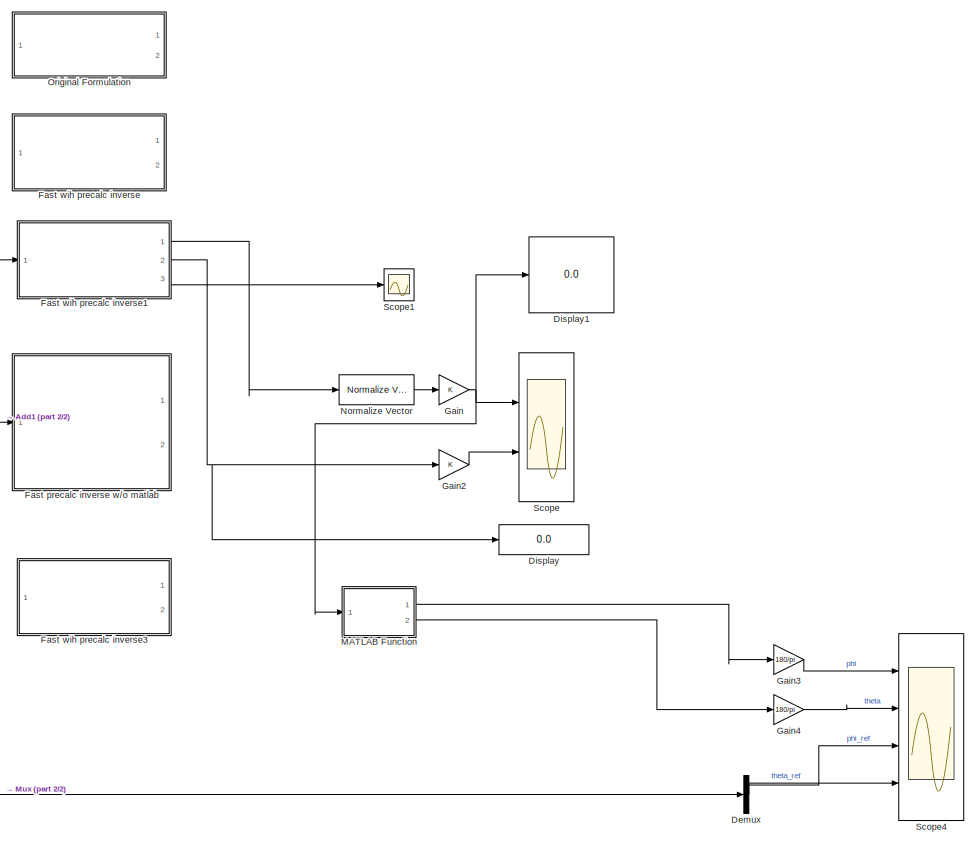
[diagram: root canvas - part 1/2, middle right region]
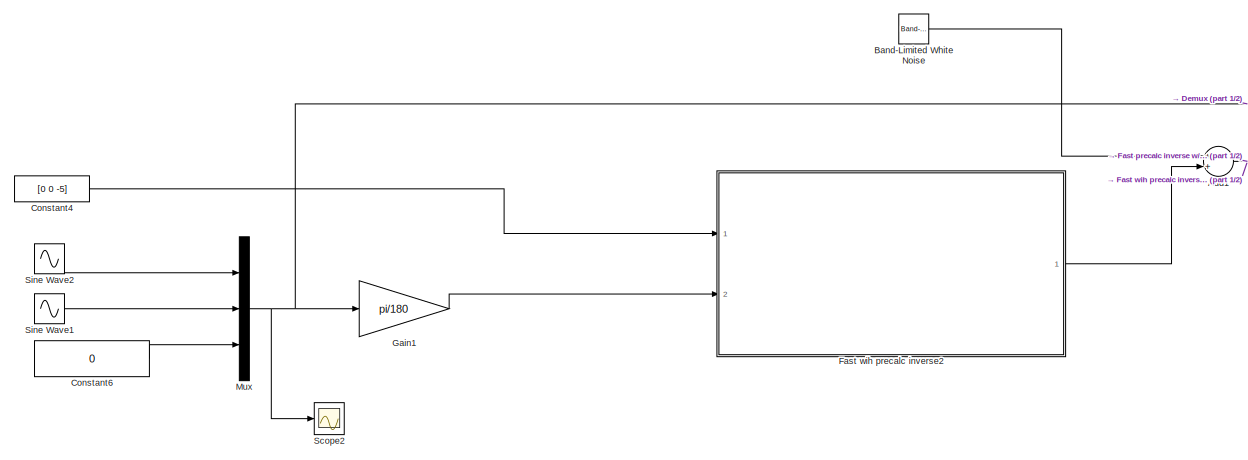
[diagram: root canvas - part 2/2, bottom left region]
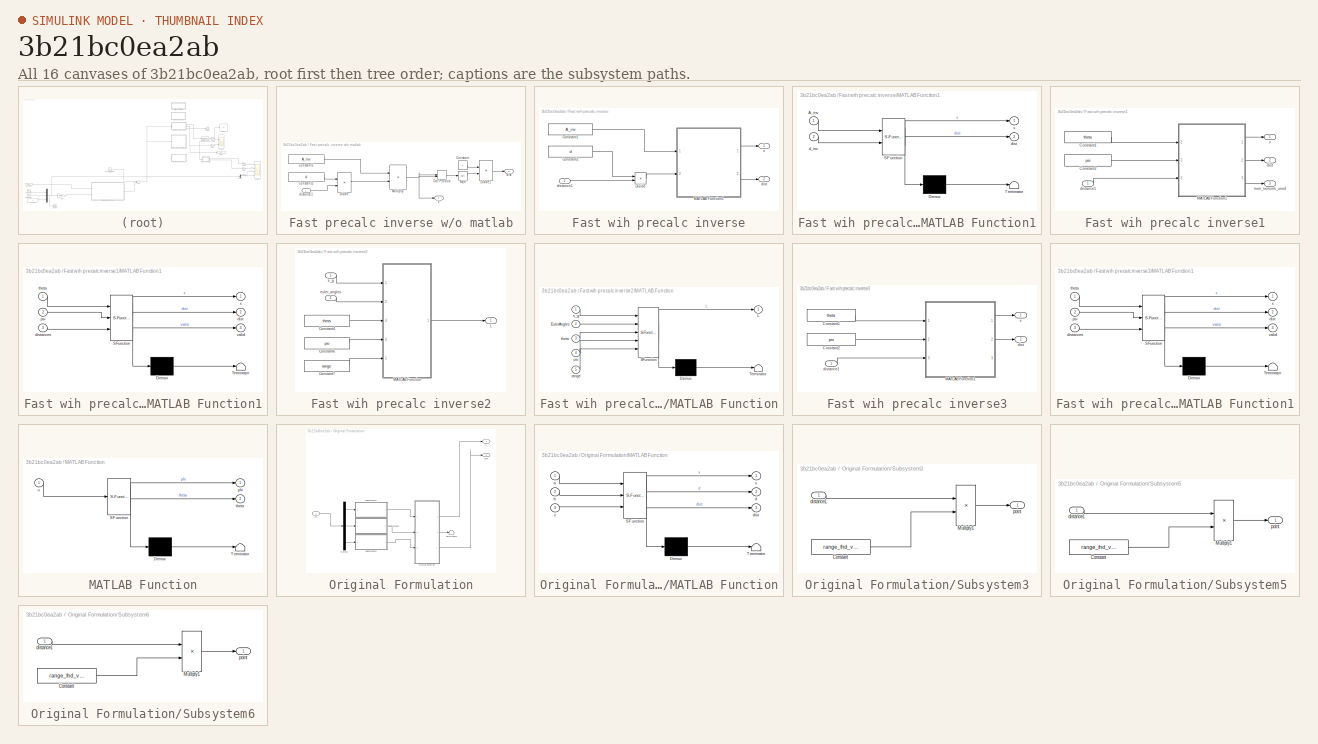
[diagram: thumbnail index - all 16 canvases of the model, root first then tree order]
MODEL slx_3b21bc0ea2ab
KIND model
CONFIG AbsTol = auto
CONFIG EnableMultiTasking = off
CONFIG FixedStep = 0.001
CONFIG MaxStep = auto
CONFIG MinStep = auto
CONFIG RelTol = 1e-3
CONFIG SampleTimeConstraint = Unconstrained
CONFIG Solver = FixedStepDiscrete
CONFIG SolverName = FixedStepDiscrete
CONFIG StartTime = 0.0
CONFIG StopTime = 100
BLOCK [Sum] Add1
  InputSameDT = off
  OutDataTypeStr = Inherit: Inherit via internal rule
  Ports = [2, 1]
  SaturateOnIntegerOverflow = off
BLOCK [Reference] Band-Limited White Noise  REF=simulink/Sources/Band-Limited
White Noise
  Ports = [0, 1]
  SourceBlock = simulink/Sources/Band-Limited\nWhite Noise
  SourceProductBaseCode = SL
  SourceProductName = Simulink
  SourceType = Band-Limited White Noise.
BLOCK [Constant] Constant4
  Value = [0 0 -5]
  VectorParams1D = off
BLOCK [Constant] Constant6
  Value = 0
  VectorParams1D = off
BLOCK [Demux] Demux
  DisplayOption = bar
  Outputs = 3
  Ports = [1, 3]
BLOCK [Display] Display
  Decimation = 1
  Ports = [1]
BLOCK [Display] Display1
  Decimation = 1
  Ports = [1]
BLOCK [SubSystem] Fast precalc inverse w//o matlab
  Commented = on
  Ports = [1, 2]
  RequestExecContextInheritance = off
BLOCK [Constant] Fast precalc inverse w//o matlab/Constant
BLOCK [Constant] Fast precalc inverse w//o matlab/Constant1
  Value = A_inv
  VectorParams1D = off
BLOCK [Constant] Fast precalc inverse w//o matlab/Constant2
  Value = d
  VectorParams1D = off
BLOCK [Product] Fast precalc inverse w//o matlab/Divide
  InputSameDT = off
  Inputs = */
  OutDataTypeStr = Inherit: Inherit via internal rule
  Ports = [2, 1]
  RndMeth = Floor
  SaturateOnIntegerOverflow = off
BLOCK [Product] Fast precalc inverse w//o matlab/Divide1
  InputSameDT = off
  Inputs = */
  OutDataTypeStr = Inherit: Inherit via internal rule
  Ports = [2, 1]
  RndMeth = Floor
  SaturateOnIntegerOverflow = off
BLOCK [DotProduct] Fast precalc inverse w//o matlab/Dot Product
  OutDataTypeStr = Inherit: Inherit via internal rule
BLOCK [Product] Fast precalc inverse w//o matlab/Multiply
  InputSameDT = off
  Multiplication = Matrix(*)
  OutDataTypeStr = Inherit: Inherit via internal rule
  Ports = [2, 1]
  RndMeth = Floor
  SaturateOnIntegerOverflow = off
BLOCK [Sqrt] Fast precalc inverse w//o matlab/Sqrt
BLOCK [Outport] Fast precalc inverse w//o matlab/dist
  IconDisplay = Port number
  Port = 2
BLOCK [Inport] Fast precalc inverse w//o matlab/distance1
  IconDisplay = Port number
BLOCK [Outport] Fast precalc inverse w//o matlab/x
  IconDisplay = Port number
BLOCK [SubSystem] Fast wih precalc inverse
  Commented = on
  Ports = [1, 2]
  RequestExecContextInheritance = off
BLOCK [Constant] Fast wih precalc inverse/Constant1
  Value = A_inv
  VectorParams1D = off
BLOCK [Constant] Fast wih precalc inverse/Constant2
  Value = d
  VectorParams1D = off
BLOCK [Product] Fast wih precalc inverse/Divide
  InputSameDT = off
  Inputs = */
  OutDataTypeStr = Inherit: Inherit via internal rule
  Ports = [2, 1]
  RndMeth = Floor
  SaturateOnIntegerOverflow = off
BLOCK [SubSystem] Fast wih precalc inverse/MATLAB Function1
  ErrorFcn = Stateflow.Translate.translate
  PermitHierarchicalResolution = ExplicitOnly
  Ports = [2, 2]
  RequestExecContextInheritance = off
  SFBlockType = MATLAB Function
  TreatAsAtomicUnit = on
BLOCK [Demux] Fast wih precalc inverse/MATLAB Function1/ Demux 
  Outputs = 1
  Ports = [1, 1]
BLOCK [S-Function] Fast wih precalc inverse/MATLAB Function1/ SFunction 
  EnableBusSupport = on
  FunctionName = sf_sfun
  PortCounts = [2 3]
  Ports = [2, 3]
  SFcnIsStateOwnerBlock = off
  SFunctionDeploymentMode = off
  Tag = Stateflow S-Function rangefinders_example 1
BLOCK [Terminator] Fast wih precalc inverse/MATLAB Function1/ Terminator 
BLOCK [Inport] Fast wih precalc inverse/MATLAB Function1/A_inv
  IconDisplay = Port number
BLOCK [Inport] Fast wih precalc inverse/MATLAB Function1/d_inv
  IconDisplay = Port number
  Port = 2
BLOCK [Outport] Fast wih precalc inverse/MATLAB Function1/dist
  IconDisplay = Port number
  Port = 2
BLOCK [Outport] Fast wih precalc inverse/MATLAB Function1/x
  IconDisplay = Port number
BLOCK [Outport] Fast wih precalc inverse/dist
  IconDisplay = Port number
  Port = 2
BLOCK [Inport] Fast wih precalc inverse/distance1
  IconDisplay = Port number
BLOCK [Outport] Fast wih precalc inverse/x
  IconDisplay = Port number
BLOCK [SubSystem] Fast wih precalc inverse1
  Ports = [1, 3]
  RequestExecContextInheritance = off
BLOCK [Constant] Fast wih precalc inverse1/Constant1
  Value = theta
  VectorParams1D = off
BLOCK [Constant] Fast wih precalc inverse1/Constant2
  Value = psi
  VectorParams1D = off
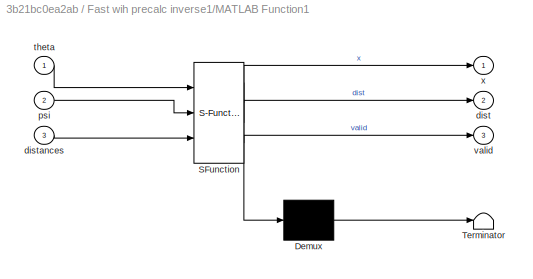
BLOCK [SubSystem] Fast wih precalc inverse1/MATLAB Function1
  ErrorFcn = Stateflow.Translate.translate
  PermitHierarchicalResolution = ExplicitOnly
  Ports = [3, 3]
  RequestExecContextInheritance = off
  SFBlockType = MATLAB Function
  TreatAsAtomicUnit = on
BLOCK [Demux] Fast wih precalc inverse1/MATLAB Function1/ Demux 
  Outputs = 1
  Ports = [1, 1]
BLOCK [S-Function] Fast wih precalc inverse1/MATLAB Function1/ SFunction 
  EnableBusSupport = on
  FunctionName = sf_sfun
  PortCounts = [3 4]
  Ports = [3, 4]
  SFcnIsStateOwnerBlock = off
  SFunctionDeploymentMode = off
  Tag = Stateflow S-Function rangefinders_example 7
BLOCK [Terminator] Fast wih precalc inverse1/MATLAB Function1/ Terminator 
BLOCK [Outport] Fast wih precalc inverse1/MATLAB Function1/dist
  IconDisplay = Port number
  Port = 2
BLOCK [Inport] Fast wih precalc inverse1/MATLAB Function1/distances
  IconDisplay = Port number
  Port = 3
BLOCK [Inport] Fast wih precalc inverse1/MATLAB Function1/psi
  IconDisplay = Port number
  Port = 2
BLOCK [Inport] Fast wih precalc inverse1/MATLAB Function1/theta
  IconDisplay = Port number
BLOCK [Outport] Fast wih precalc inverse1/MATLAB Function1/valid
  IconDisplay = Port number
  Port = 3
BLOCK [Outport] Fast wih precalc inverse1/MATLAB Function1/x
  IconDisplay = Port number
BLOCK [Outport] Fast wih precalc inverse1/dist
  IconDisplay = Port number
  Port = 2
BLOCK [Inport] Fast wih precalc inverse1/distance1
  IconDisplay = Port number
BLOCK [Outport] Fast wih precalc inverse1/num_sensors_used
  IconDisplay = Port number
  Port = 3
BLOCK [Outport] Fast wih precalc inverse1/x
  IconDisplay = Port number
BLOCK [SubSystem] Fast wih precalc inverse2
  Ports = [2, 1]
  RequestExecContextInheritance = off
BLOCK [Constant] Fast wih precalc inverse2/Constant4
  Value = theta
  VectorParams1D = off
BLOCK [Constant] Fast wih precalc inverse2/Constant6
  Value = psi
  VectorParams1D = off
BLOCK [Constant] Fast wih precalc inverse2/Constant7
  Value = range
  VectorParams1D = off
BLOCK [Outport] Fast wih precalc inverse2/L
  IconDisplay = Port number
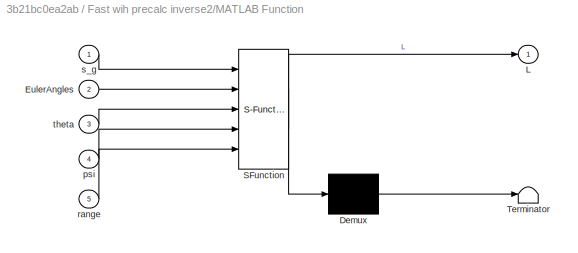
BLOCK [SubSystem] Fast wih precalc inverse2/MATLAB Function
  ErrorFcn = Stateflow.Translate.translate
  PermitHierarchicalResolution = ExplicitOnly
  Ports = [5, 1]
  RequestExecContextInheritance = off
  SFBlockType = MATLAB Function
  TreatAsAtomicUnit = on
BLOCK [Demux] Fast wih precalc inverse2/MATLAB Function/ Demux 
  Outputs = 1
  Ports = [1, 1]
BLOCK [S-Function] Fast wih precalc inverse2/MATLAB Function/ SFunction 
  EnableBusSupport = on
  FunctionName = sf_sfun
  PortCounts = [5 2]
  Ports = [5, 2]
  SFcnIsStateOwnerBlock = off
  SFunctionDeploymentMode = off
  Tag = Stateflow S-Function rangefinders_example 10
BLOCK [Terminator] Fast wih precalc inverse2/MATLAB Function/ Terminator 
BLOCK [Inport] Fast wih precalc inverse2/MATLAB Function/EulerAngles
  IconDisplay = Port number
  Port = 2
BLOCK [Outport] Fast wih precalc inverse2/MATLAB Function/L
  IconDisplay = Port number
BLOCK [Inport] Fast wih precalc inverse2/MATLAB Function/psi
  IconDisplay = Port number
  Port = 4
BLOCK [Inport] Fast wih precalc inverse2/MATLAB Function/range
  IconDisplay = Port number
  Port = 5
BLOCK [Inport] Fast wih precalc inverse2/MATLAB Function/s_g
  IconDisplay = Port number
BLOCK [Inport] Fast wih precalc inverse2/MATLAB Function/theta
  IconDisplay = Port number
  Port = 3
BLOCK [Inport] Fast wih precalc inverse2/euler_angles
  IconDisplay = Port number
  Port = 2
BLOCK [Inport] Fast wih precalc inverse2/s_g
  IconDisplay = Port number
BLOCK [SubSystem] Fast wih precalc inverse3
  Commented = on
  Ports = [1, 2]
  RequestExecContextInheritance = off
BLOCK [Constant] Fast wih precalc inverse3/Constant1
  Value = theta
  VectorParams1D = off
BLOCK [Constant] Fast wih precalc inverse3/Constant2
  Value = psi
  VectorParams1D = off
BLOCK [SubSystem] Fast wih precalc inverse3/MATLAB Function1
  ErrorFcn = Stateflow.Translate.translate
  PermitHierarchicalResolution = ExplicitOnly
  Ports = [3, 3]
  RequestExecContextInheritance = off
  SFBlockType = MATLAB Function
  TreatAsAtomicUnit = on
BLOCK [Demux] Fast wih precalc inverse3/MATLAB Function1/ Demux 
  Outputs = 1
  Ports = [1, 1]
BLOCK [S-Function] Fast wih precalc inverse3/MATLAB Function1/ SFunction 
  EnableBusSupport = on
  FunctionName = sf_sfun
  PortCounts = [3 4]
  Ports = [3, 4]
  SFcnIsStateOwnerBlock = off
  SFunctionDeploymentMode = off
  Tag = Stateflow S-Function rangefinders_example 2
BLOCK [Terminator] Fast wih precalc inverse3/MATLAB Function1/ Terminator 
BLOCK [Outport] Fast wih precalc inverse3/MATLAB Function1/dist
  IconDisplay = Port number
  Port = 2
BLOCK [Inport] Fast wih precalc inverse3/MATLAB Function1/distances
  IconDisplay = Port number
  Port = 3
BLOCK [Inport] Fast wih precalc inverse3/MATLAB Function1/psi
  IconDisplay = Port number
  Port = 2
BLOCK [Inport] Fast wih precalc inverse3/MATLAB Function1/theta
  IconDisplay = Port number
BLOCK [Outport] Fast wih precalc inverse3/MATLAB Function1/valid
  IconDisplay = Port number
  Port = 3
BLOCK [Outport] Fast wih precalc inverse3/MATLAB Function1/x
  IconDisplay = Port number
BLOCK [Outport] Fast wih precalc inverse3/dist
  IconDisplay = Port number
  Port = 2
BLOCK [Inport] Fast wih precalc inverse3/distance1
  IconDisplay = Port number
BLOCK [Outport] Fast wih precalc inverse3/x
  IconDisplay = Port number
BLOCK [Gain] Gain
  OutDataTypeStr = Inherit: Inherit via internal rule
  ParamDataTypeStr = Inherit: Inherit via internal rule
  SaturateOnIntegerOverflow = off
BLOCK [Gain] Gain1
  Gain = pi/180
  OutDataTypeStr = Inherit: Inherit via internal rule
  ParamDataTypeStr = Inherit: Inherit via internal rule
  SaturateOnIntegerOverflow = off
BLOCK [Gain] Gain2
  OutDataTypeStr = Inherit: Inherit via internal rule
  ParamDataTypeStr = Inherit: Inherit via internal rule
  SaturateOnIntegerOverflow = off
BLOCK [Gain] Gain3
  Gain = 180/pi
  OutDataTypeStr = Inherit: Inherit via internal rule
  ParamDataTypeStr = Inherit: Inherit via internal rule
  SaturateOnIntegerOverflow = off
BLOCK [Gain] Gain4
  Gain = 180/pi
  OutDataTypeStr = Inherit: Inherit via internal rule
  ParamDataTypeStr = Inherit: Inherit via internal rule
  SaturateOnIntegerOverflow = off
BLOCK [SubSystem] MATLAB Function
  ErrorFcn = Stateflow.Translate.translate
  PermitHierarchicalResolution = ExplicitOnly
  Ports = [1, 2]
  RequestExecContextInheritance = off
  SFBlockType = MATLAB Function
  TreatAsAtomicUnit = on
BLOCK [Demux] MATLAB Function/ Demux 
  Outputs = 1
  Ports = [1, 1]
BLOCK [S-Function] MATLAB Function/ SFunction 
  EnableBusSupport = on
  FunctionName = sf_sfun
  PortCounts = [1 3]
  Ports = [1, 3]
  SFcnIsStateOwnerBlock = off
  SFunctionDeploymentMode = off
  Tag = Stateflow S-Function rangefinders_example 3
BLOCK [Terminator] MATLAB Function/ Terminator 
BLOCK [Outport] MATLAB Function/phi
  IconDisplay = Port number
BLOCK [Outport] MATLAB Function/theta
  IconDisplay = Port number
  Port = 2
BLOCK [Inport] MATLAB Function/u
  IconDisplay = Port number
BLOCK [Mux] Mux
  DisplayOption = bar
  Inputs = 3
  Ports = [3, 1]
BLOCK [Reference] Normalize Vector  REF=vrlib/Utilities/Normalize Vector
  Ports = [1, 1]
  SourceBlock = vrlib/Utilities/Normalize Vector
  SourceProductBaseCode = VR
  SourceProductName = Simulink 3D Animation
  SourceType = Normalize Vector
BLOCK [SubSystem] Original Formulation
  Commented = on
  Ports = [1, 2]
  RequestExecContextInheritance = off
BLOCK [Demux] Original Formulation/Demux
  DisplayOption = bar
  Outputs = 3
  Ports = [1, 3]
BLOCK [Inport] Original Formulation/In1
  IconDisplay = Port number
BLOCK [SubSystem] Original Formulation/MATLAB Function
  ErrorFcn = Stateflow.Translate.translate
  PermitHierarchicalResolution = ExplicitOnly
  Ports = [3, 3]
  RequestExecContextInheritance = off
  SFBlockType = MATLAB Function
  TreatAsAtomicUnit = on
BLOCK [Demux] Original Formulation/MATLAB Function/ Demux 
  Outputs = 1
  Ports = [1, 1]
BLOCK [S-Function] Original Formulation/MATLAB Function/ SFunction 
  EnableBusSupport = on
  FunctionName = sf_sfun
  PortCounts = [3 4]
  Ports = [3, 4]
  SFcnIsStateOwnerBlock = off
  SFunctionDeploymentMode = off
  Tag = Stateflow S-Function rangefinders_example 4
BLOCK [Terminator] Original Formulation/MATLAB Function/ Terminator 
BLOCK [Inport] Original Formulation/MATLAB Function/a
  IconDisplay = Port number
BLOCK [Inport] Original Formulation/MATLAB Function/b
  IconDisplay = Port number
  Port = 2
BLOCK [Inport] Original Formulation/MATLAB Function/c
  IconDisplay = Port number
  Port = 3
BLOCK [Outport] Original Formulation/MATLAB Function/d
  IconDisplay = Port number
  Port = 2
BLOCK [Outport] Original Formulation/MATLAB Function/dist
  IconDisplay = Port number
  Port = 3
BLOCK [Outport] Original Formulation/MATLAB Function/x
  IconDisplay = Port number
BLOCK [SubSystem] Original Formulation/Subsystem3
  Ports = [1, 1]
  RequestExecContextInheritance = off
BLOCK [Constant] Original Formulation/Subsystem3/Constant
  Value = range_fnd_vec
  VectorParams1D = off
BLOCK [Product] Original Formulation/Subsystem3/Multiply1
  InputSameDT = off
  OutDataTypeStr = Inherit: Inherit via internal rule
  Ports = [2, 1]
  RndMeth = Floor
  SaturateOnIntegerOverflow = off
BLOCK [Inport] Original Formulation/Subsystem3/distance1
  IconDisplay = Port number
BLOCK [Outport] Original Formulation/Subsystem3/point
  IconDisplay = Port number
BLOCK [SubSystem] Original Formulation/Subsystem5
  Ports = [1, 1]
  RequestExecContextInheritance = off
BLOCK [Constant] Original Formulation/Subsystem5/Constant
  Value = range_fnd_vec
  VectorParams1D = off
BLOCK [Product] Original Formulation/Subsystem5/Multiply1
  InputSameDT = off
  OutDataTypeStr = Inherit: Inherit via internal rule
  Ports = [2, 1]
  RndMeth = Floor
  SaturateOnIntegerOverflow = off
BLOCK [Inport] Original Formulation/Subsystem5/distance1
  IconDisplay = Port number
BLOCK [Outport] Original Formulation/Subsystem5/point
  IconDisplay = Port number
BLOCK [SubSystem] Original Formulation/Subsystem6
  Ports = [1, 1]
  RequestExecContextInheritance = off
BLOCK [Constant] Original Formulation/Subsystem6/Constant
  Value = range_fnd_vec
  VectorParams1D = off
BLOCK [Product] Original Formulation/Subsystem6/Multiply1
  InputSameDT = off
  OutDataTypeStr = Inherit: Inherit via internal rule
  Ports = [2, 1]
  RndMeth = Floor
  SaturateOnIntegerOverflow = off
BLOCK [Inport] Original Formulation/Subsystem6/distance1
  IconDisplay = Port number
BLOCK [Outport] Original Formulation/Subsystem6/point
  IconDisplay = Port number
BLOCK [Terminator] Original Formulation/Terminator
BLOCK [Outport] Original Formulation/dist
  IconDisplay = Port number
  Port = 2
BLOCK [Outport] Original Formulation/x
  IconDisplay = Port number
BLOCK [Scope] Scope
  Floating = off
  NumInputPorts = 2
  Ports = [2]
  ScopeSpecificationString = Simulink.scopes.TimeScopeBlockCfg('CurrentConfiguration', extmgr.ConfigurationSet(extmgr.Configuration('Core','General UI',true),extmgr.Configuration('Core','Source UI',true),extmgr.Configuration('Sources','WiredSimulink',true,'DataLoggingVariableName','ScopeData1'),extmgr.Configuration('Visuals','Time Domain',true,'SerializedDisplays',{struct('MinYLimReal','-1.25','MaxYLimReal','1.25','YLabelReal...<+2015ch>
BLOCK [Scope] Scope1
  Floating = off
  NumInputPorts = 1
  Ports = [1]
  ScopeSpecificationString = Simulink.scopes.TimeScopeBlockCfg('CurrentConfiguration', extmgr.ConfigurationSet(extmgr.Configuration('Core','General UI',true),extmgr.Configuration('Core','Source UI',true),extmgr.Configuration('Sources','WiredSimulink',true,'DataLoggingVariableName','ScopeData1'),extmgr.Configuration('Visuals','Time Domain',true,'SerializedDisplays',{struct('MinYLimReal','7.25','MaxYLimReal','14.75','YLabelReal...<+1422ch>
BLOCK [Scope] Scope2
  Floating = off
  NumInputPorts = 1
  Ports = [1]
  ScopeSpecificationString = Simulink.scopes.TimeScopeBlockCfg('CurrentConfiguration', extmgr.ConfigurationSet(extmgr.Configuration('Core','General UI',true),extmgr.Configuration('Core','Source UI',true),extmgr.Configuration('Sources','WiredSimulink',true,'DataLoggingVariableName','ScopeData1'),extmgr.Configuration('Visuals','Time Domain',true,'SerializedDisplays',{struct('MinYLimReal','-75.00000','MaxYLimReal','75.00000','YL...<+1495ch>
BLOCK [Scope] Scope4
  Floating = off
  NumInputPorts = 4
  Ports = [4]
  ScopeSpecificationString = Simulink.scopes.TimeScopeBlockCfg('CurrentConfiguration', extmgr.ConfigurationSet(extmgr.Configuration('Core','General UI',true),extmgr.Configuration('Core','Source UI',true),extmgr.Configuration('Sources','WiredSimulink',true,'DataLoggingVariableName','ScopeData4'),extmgr.Configuration('Visuals','Time Domain',true,'SerializedDisplays',{struct('MinYLimReal','-212.71906','MaxYLimReal','212.6436','Y...<+2020ch>
BLOCK [Sin] Sine Wave1
  Amplitude = 60
  Frequency = 1/(2*pi)
  Ports = [0, 1]
  SampleTime = 0
BLOCK [Sin] Sine Wave2
  Amplitude = 170
  Frequency = 3.5/(2*pi)
  Ports = [0, 1]
  SampleTime = 0
NET Add1:1 -> Fast precalc inverse w//o matlab:1, Fast wih precalc inverse1:1
LINE Band-Limited White Noise:1 -> Add1:1
LINE Constant4:1 -> Fast wih precalc inverse2:1
LINE Constant6:1 -> Mux:3
LINE Demux:1 -> Scope4:3
LINE Demux:2 -> Scope4:4
LINE Fast precalc inverse w//o matlab/Constant1:1 -> Fast precalc inverse w//o matlab/Multiply:1
LINE Fast precalc inverse w//o matlab/Constant2:1 -> Fast precalc inverse w//o matlab/Divide:1
LINE Fast precalc inverse w//o matlab/Constant:1 -> Fast precalc inverse w//o matlab/Divide1:1
LINE Fast precalc inverse w//o matlab/Divide1:1 -> Fast precalc inverse w//o matlab/dist:1
LINE Fast precalc inverse w//o matlab/Divide:1 -> Fast precalc inverse w//o matlab/Multiply:2
LINE Fast precalc inverse w//o matlab/Dot Product:1 -> Fast precalc inverse w//o matlab/Sqrt:1
NET Fast precalc inverse w//o matlab/Multiply:1 -> Fast precalc inverse w//o matlab/Dot Product:1, Fast precalc inverse w//o matlab/Dot Product:2, Fast precalc inverse w//o matlab/x:1
LINE Fast precalc inverse w//o matlab/Sqrt:1 -> Fast precalc inverse w//o matlab/Divide1:2
LINE Fast precalc inverse w//o matlab/distance1:1 -> Fast precalc inverse w//o matlab/Divide:2
LINE Fast wih precalc inverse/Constant1:1 -> Fast wih precalc inverse/MATLAB Function1:1
LINE Fast wih precalc inverse/Constant2:1 -> Fast wih precalc inverse/Divide:1
LINE Fast wih precalc inverse/Divide:1 -> Fast wih precalc inverse/MATLAB Function1:2
LINE Fast wih precalc inverse/MATLAB Function1:1 -> Fast wih precalc inverse/x:1
LINE Fast wih precalc inverse/MATLAB Function1:2 -> Fast wih precalc inverse/dist:1
LINE Fast wih precalc inverse/distance1:1 -> Fast wih precalc inverse/Divide:2
LINE Fast wih precalc inverse1/Constant1:1 -> Fast wih precalc inverse1/MATLAB Function1:1
LINE Fast wih precalc inverse1/Constant2:1 -> Fast wih precalc inverse1/MATLAB Function1:2
LINE Fast wih precalc inverse1/MATLAB Function1:1 -> Fast wih precalc inverse1/x:1
LINE Fast wih precalc inverse1/MATLAB Function1:2 -> Fast wih precalc inverse1/dist:1
LINE Fast wih precalc inverse1/MATLAB Function1:3 -> Fast wih precalc inverse1/num_sensors_used:1
LINE Fast wih precalc inverse1/distance1:1 -> Fast wih precalc inverse1/MATLAB Function1:3
LINE Fast wih precalc inverse1:1 -> Normalize Vector:1
NET Fast wih precalc inverse1:2 -> Display:1, Gain2:1
LINE Fast wih precalc inverse1:3 -> Scope1:1
LINE Fast wih precalc inverse2/Constant4:1 -> Fast wih precalc inverse2/MATLAB Function:3
LINE Fast wih precalc inverse2/Constant6:1 -> Fast wih precalc inverse2/MATLAB Function:4
LINE Fast wih precalc inverse2/Constant7:1 -> Fast wih precalc inverse2/MATLAB Function:5
LINE Fast wih precalc inverse2/MATLAB Function:1 -> Fast wih precalc inverse2/L:1
LINE Fast wih precalc inverse2/euler_angles:1 -> Fast wih precalc inverse2/MATLAB Function:2
LINE Fast wih precalc inverse2/s_g:1 -> Fast wih precalc inverse2/MATLAB Function:1
LINE Fast wih precalc inverse2:1 -> Add1:2
LINE Fast wih precalc inverse3/Constant1:1 -> Fast wih precalc inverse3/MATLAB Function1:1
LINE Fast wih precalc inverse3/Constant2:1 -> Fast wih precalc inverse3/MATLAB Function1:2
LINE Fast wih precalc inverse3/MATLAB Function1:1 -> Fast wih precalc inverse3/x:1
LINE Fast wih precalc inverse3/MATLAB Function1:2 -> Fast wih precalc inverse3/dist:1
LINE Fast wih precalc inverse3/distance1:1 -> Fast wih precalc inverse3/MATLAB Function1:3
LINE Gain1:1 -> Fast wih precalc inverse2:2
LINE Gain2:1 -> Scope:2
LINE Gain3:1 -> Scope4:1
LINE Gain4:1 -> Scope4:2
NET Gain:1 -> Display1:1, MATLAB Function:1, Scope:1
LINE MATLAB Function:1 -> Gain3:1
LINE MATLAB Function:2 -> Gain4:1
NET Mux:1 -> Demux:1, Gain1:1, Scope2:1
LINE Normalize Vector:1 -> Gain:1
LINE Original Formulation/Demux:1 -> Original Formulation/Subsystem3:1
LINE Original Formulation/Demux:2 -> Original Formulation/Subsystem5:1
LINE Original Formulation/Demux:3 -> Original Formulation/Subsystem6:1
LINE Original Formulation/In1:1 -> Original Formulation/Demux:1
LINE Original Formulation/MATLAB Function:1 -> Original Formulation/x:1
LINE Original Formulation/MATLAB Function:2 -> Original Formulation/Terminator:1
LINE Original Formulation/MATLAB Function:3 -> Original Formulation/dist:1
LINE Original Formulation/Subsystem3/Constant:1 -> Original Formulation/Subsystem3/Multiply1:2
LINE Original Formulation/Subsystem3/Multiply1:1 -> Original Formulation/Subsystem3/point:1
LINE Original Formulation/Subsystem3/distance1:1 -> Original Formulation/Subsystem3/Multiply1:1
LINE Original Formulation/Subsystem3:1 -> Original Formulation/MATLAB Function:1
LINE Original Formulation/Subsystem5/Constant:1 -> Original Formulation/Subsystem5/Multiply1:2
LINE Original Formulation/Subsystem5/Multiply1:1 -> Original Formulation/Subsystem5/point:1
LINE Original Formulation/Subsystem5/distance1:1 -> Original Formulation/Subsystem5/Multiply1:1
LINE Original Formulation/Subsystem5:1 -> Original Formulation/MATLAB Function:2
LINE Original Formulation/Subsystem6/Constant:1 -> Original Formulation/Subsystem6/Multiply1:2
LINE Original Formulation/Subsystem6/Multiply1:1 -> Original Formulation/Subsystem6/point:1
LINE Original Formulation/Subsystem6/distance1:1 -> Original Formulation/Subsystem6/Multiply1:1
LINE Original Formulation/Subsystem6:1 -> Original Formulation/MATLAB Function:3
LINE Sine Wave1:1 -> Mux:2
LINE Sine Wave2:1 -> Mux:1
note: NET lines group one-source signal fan-out (src -> all destinations, sorted); 1:1 wires keep LINE
CHART Fast wih precalc inverse/MATLAB Function1 states=1 transitions=1
  STATE_LABEL 'eML_blk_kernel()'
  STATE_LABEL 'SCRIPT:\nfunction [x,dist] = fcn(A_inv,d_inv)\n\nx = A_inv * d_inv;\n\ndist = 1 / norm(x);\n'
CHART Fast wih precalc inverse3/MATLAB Function1 states=1 transitions=1
  STATE_LABEL 'eML_blk_kernel()'
  STATE_LABEL "SCRIPT:\nfunction [x,dist,valid] = fcn(theta, psi, distances)\n\nsize_n     = length(theta)+5;\nsize_theta = length(theta);\n\n\nA = zeros(size_n, 3);\n\nd_ones = ones(size_theta, 1);\nd_inv = zeros(size_n, 1);\n\nd_inv(1:size_theta) = d_ones ./ distances;\n\nvalid = 0;\n\nfor i = 1:size_theta\n   if(distances(i) < 50)\n        A(i,:) = (euler2Dcm(pi/180*[0 theta(i) psi(i)])' * [1; 0; 0])';\n        valid = valid + ...<+195ch>"
CHART MATLAB Function states=1 transitions=1
  STATE_LABEL 'eML_blk_kernel()'
  STATE_LABEL 'SCRIPT:\nfunction [phi,theta] = fcn(u)\n\nphi   = atan2(u(2), u(3));\ntheta = atan2(-u(1), sqrt(u(2)^2 + u(3)^2));\n\nend'
CHART Original Formulation/MATLAB Function states=1 transitions=1
  STATE_LABEL 'eML_blk_kernel()'
  STATE_LABEL "SCRIPT:\nfunction [x,d,dist]  = fcn(a,b,c)\n%ax + by + cz = d\n\nx = zeros(3,1);\n\nd = 1;\n\nA = [a(1) a(2) a(3);\n     b(1) b(2) b(3);\n     c(1) c(2) c(3)];\n \ny = [d; d; d];\n\nx = (A'*A) \\ (A'*y);\n%x = A \\ y;\n\ndist = 1 / norm(x);\n\nend\n"
CHART Fast wih precalc inverse1/MATLAB Function1 states=1 transitions=1
  STATE_LABEL 'eML_blk_kernel()'
  STATE_LABEL "SCRIPT:\nfunction [x,dist,valid] = fcn(theta, psi, distances)\n\nsize_n     = length(theta)+5;\nsize_theta = length(theta);\n\n\nA = zeros(size_n, 3);\n\nd_ones = ones(size_theta, 1);\nd_inv = zeros(size_n, 1);\n\nd_inv(1:size_theta) = d_ones ./ distances;\n\nvalid = 0;\n\nfor i = 1:size_theta\n   if(distances(i) < 50)\n        A(i,:) = (euler2Dcm(pi/180*[0 theta(i) psi(i)])' * [1; 0; 0])';\n        valid = valid + ...<+195ch>"
CHART Fast wih precalc inverse2/MATLAB Function states=1 transitions=1
  STATE_LABEL 'eML_blk_kernel()'
  STATE_LABEL "SCRIPT:\nfunction L  = calc_length(s_g,EulerAngles,theta,psi,range)\n\nn  = [0 0 1];\nV0 = [0 0 0];\nP0 = s_g;\n\nM_bg = euler2Dcm(EulerAngles);\n\nL = zeros(length(theta),1);\n\nfor i=1:length(theta)\n    matrix_rot_T  = euler2Dcm(pi/180*[0 theta(i) psi(i)])';\n    normal_vector = matrix_rot_T * [range(i); 0; 0];\n    u = (M_bg' * normal_vector)';\n    [~, ~, L(i)]=plane_line_intersect(n,V0,P0,u);\nend\n\n\nend\n\n\nf...<+1870ch>"
